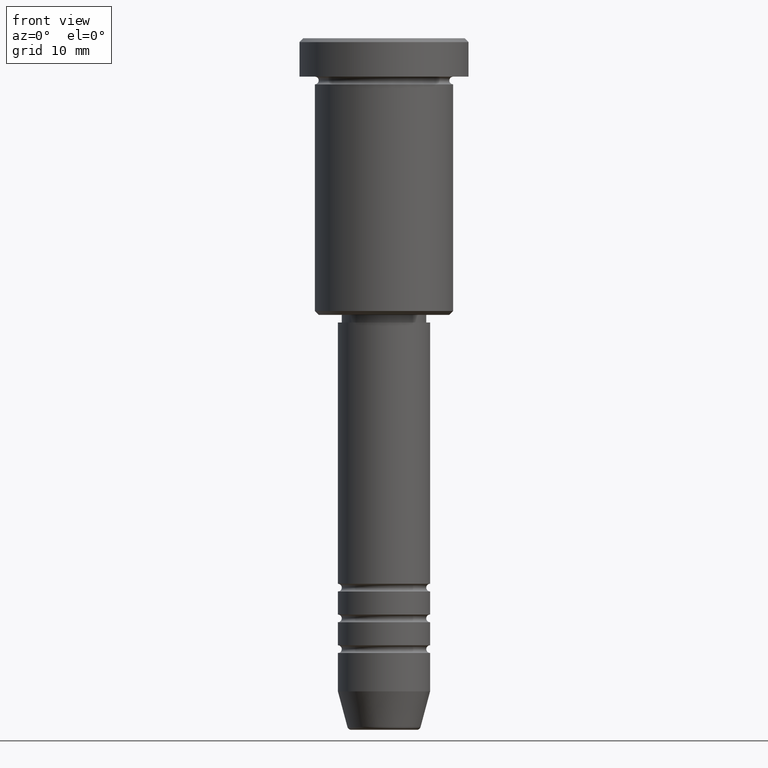
[diagram: clean part render]
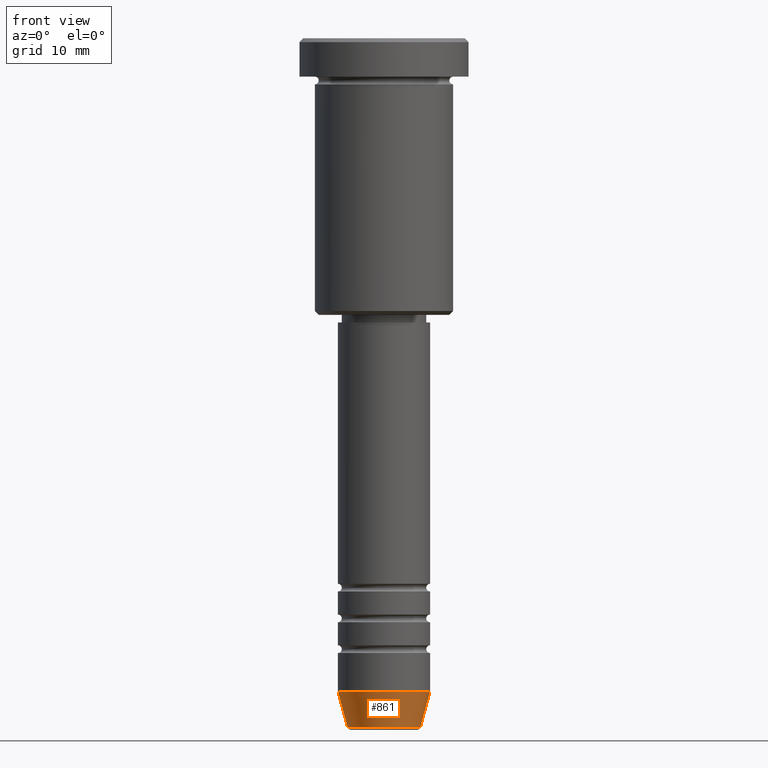
[diagram: same view with one face highlighted and labeled with its STEP entity id]
A machine part, front view. The second image highlights one B-rep face of the part: STEP entity #861.
In plain terms, the highlighted conical surface has half-angle 15 deg.
Its self-contained STEP definition (entity closure, byte-faithful):
#54 = FACE_OUTER_BOUND ( 'NONE', #851, .T. ) ;
#129 = EDGE_CURVE ( 'NONE', #512, #720, #640, .T. ) ;
#131 = CARTESIAN_POINT ( 'NONE',  ( 6.000000000000000000, 0.000000000000000000, -84.99999999999998579 ) ) ;
#160 = AXIS2_PLACEMENT_3D ( 'NONE', #615, #1164, #1004 ) ;
#182 = VERTEX_POINT ( 'NONE', #848 ) ;
#223 = CIRCLE ( 'NONE', #996, 4.759553456999436882 ) ;
#246 = DIRECTION ( 'NONE',  ( -0.000000000000000000, -0.000000000000000000, 1.000000000000000000 ) ) ;
#276 = CARTESIAN_POINT ( 'NONE',  ( -6.000000000000000000, 7.347880794884119736E-16, -84.99999999999998579 ) ) ;
#310 = CARTESIAN_POINT ( 'NONE',  ( 0.000000000000000000, 0.000000000000000000, -89.62940952255125637 ) ) ;
#317 = LINE ( 'NONE', #324, #469 ) ;
#324 = CARTESIAN_POINT ( 'NONE',  ( 6.000000000000000000, 0.000000000000000000, -84.99999999999998579 ) ) ;
#400 = DIRECTION ( 'NONE',  ( -0.2588190451025213501, 3.169619151431772337E-17, 0.9659258262890680902 ) ) ;
#404 = DIRECTION ( 'NONE',  ( 0.2588190451025213501, 0.000000000000000000, 0.9659258262890680902 ) ) ;
#422 = CARTESIAN_POINT ( 'NONE',  ( 0.000000000000000000, 0.000000000000000000, -84.99999999999998579 ) ) ;
#448 = AXIS2_PLACEMENT_3D ( 'NONE', #422, #246, #977 ) ;
#469 = VECTOR ( 'NONE', #404, 1000.000000000000000 ) ;
#512 = VERTEX_POINT ( 'NONE', #276 ) ;
#518 = ORIENTED_EDGE ( 'NONE', *, *, #767, .T. ) ;
#583 = CONICAL_SURFACE ( 'NONE', #448, 6.000000000000000000, 0.2617993877991500740 ) ;
#615 = CARTESIAN_POINT ( 'NONE',  ( 0.000000000000000000, 0.000000000000000000, -84.99999999999998579 ) ) ;
#632 = VERTEX_POINT ( 'NONE', #657 ) ;
#640 = CIRCLE ( 'NONE', #160, 6.000000000000000000 ) ;
#657 = CARTESIAN_POINT ( 'NONE',  ( -4.759553456999436882, 6.588326350684601277E-16, -89.62940952255125637 ) ) ;
#672 = DIRECTION ( 'NONE',  ( -0.000000000000000000, -0.000000000000000000, 1.000000000000000000 ) ) ;
#720 = VERTEX_POINT ( 'NONE', #131 ) ;
#724 = ORIENTED_EDGE ( 'NONE', *, *, #129, .F. ) ;
#750 = EDGE_CURVE ( 'NONE', #632, #512, #770, .T. ) ;
#752 = EDGE_CURVE ( 'NONE', #632, #182, #223, .T. ) ;
#767 = EDGE_CURVE ( 'NONE', #182, #720, #317, .T. ) ;
#770 = LINE ( 'NONE', #1148, #795 ) ;
#795 = VECTOR ( 'NONE', #400, 1000.000000000000000 ) ;
#848 = CARTESIAN_POINT ( 'NONE',  ( 4.759553456999436882, 0.000000000000000000, -89.62940952255125637 ) ) ;
#851 = EDGE_LOOP ( 'NONE', ( #1116, #853, #518, #724 ) ) ;
#853 = ORIENTED_EDGE ( 'NONE', *, *, #752, .T. ) ;
#861 = ADVANCED_FACE ( 'NONE', ( #54 ), #583, .T. ) ;
#977 = DIRECTION ( 'NONE',  ( 1.000000000000000000, 0.000000000000000000, 0.000000000000000000 ) ) ;
#996 = AXIS2_PLACEMENT_3D ( 'NONE', #310, #672, #1044 ) ;
#1004 = DIRECTION ( 'NONE',  ( 1.000000000000000000, 0.000000000000000000, 0.000000000000000000 ) ) ;
#1044 = DIRECTION ( 'NONE',  ( 1.000000000000000000, 0.000000000000000000, 0.000000000000000000 ) ) ;
#1116 = ORIENTED_EDGE ( 'NONE', *, *, #750, .F. ) ;
#1148 = CARTESIAN_POINT ( 'NONE',  ( -6.000000000000000000, 7.347880794884119736E-16, -84.99999999999998579 ) ) ;
#1164 = DIRECTION ( 'NONE',  ( -0.000000000000000000, -0.000000000000000000, 1.000000000000000000 ) ) ;